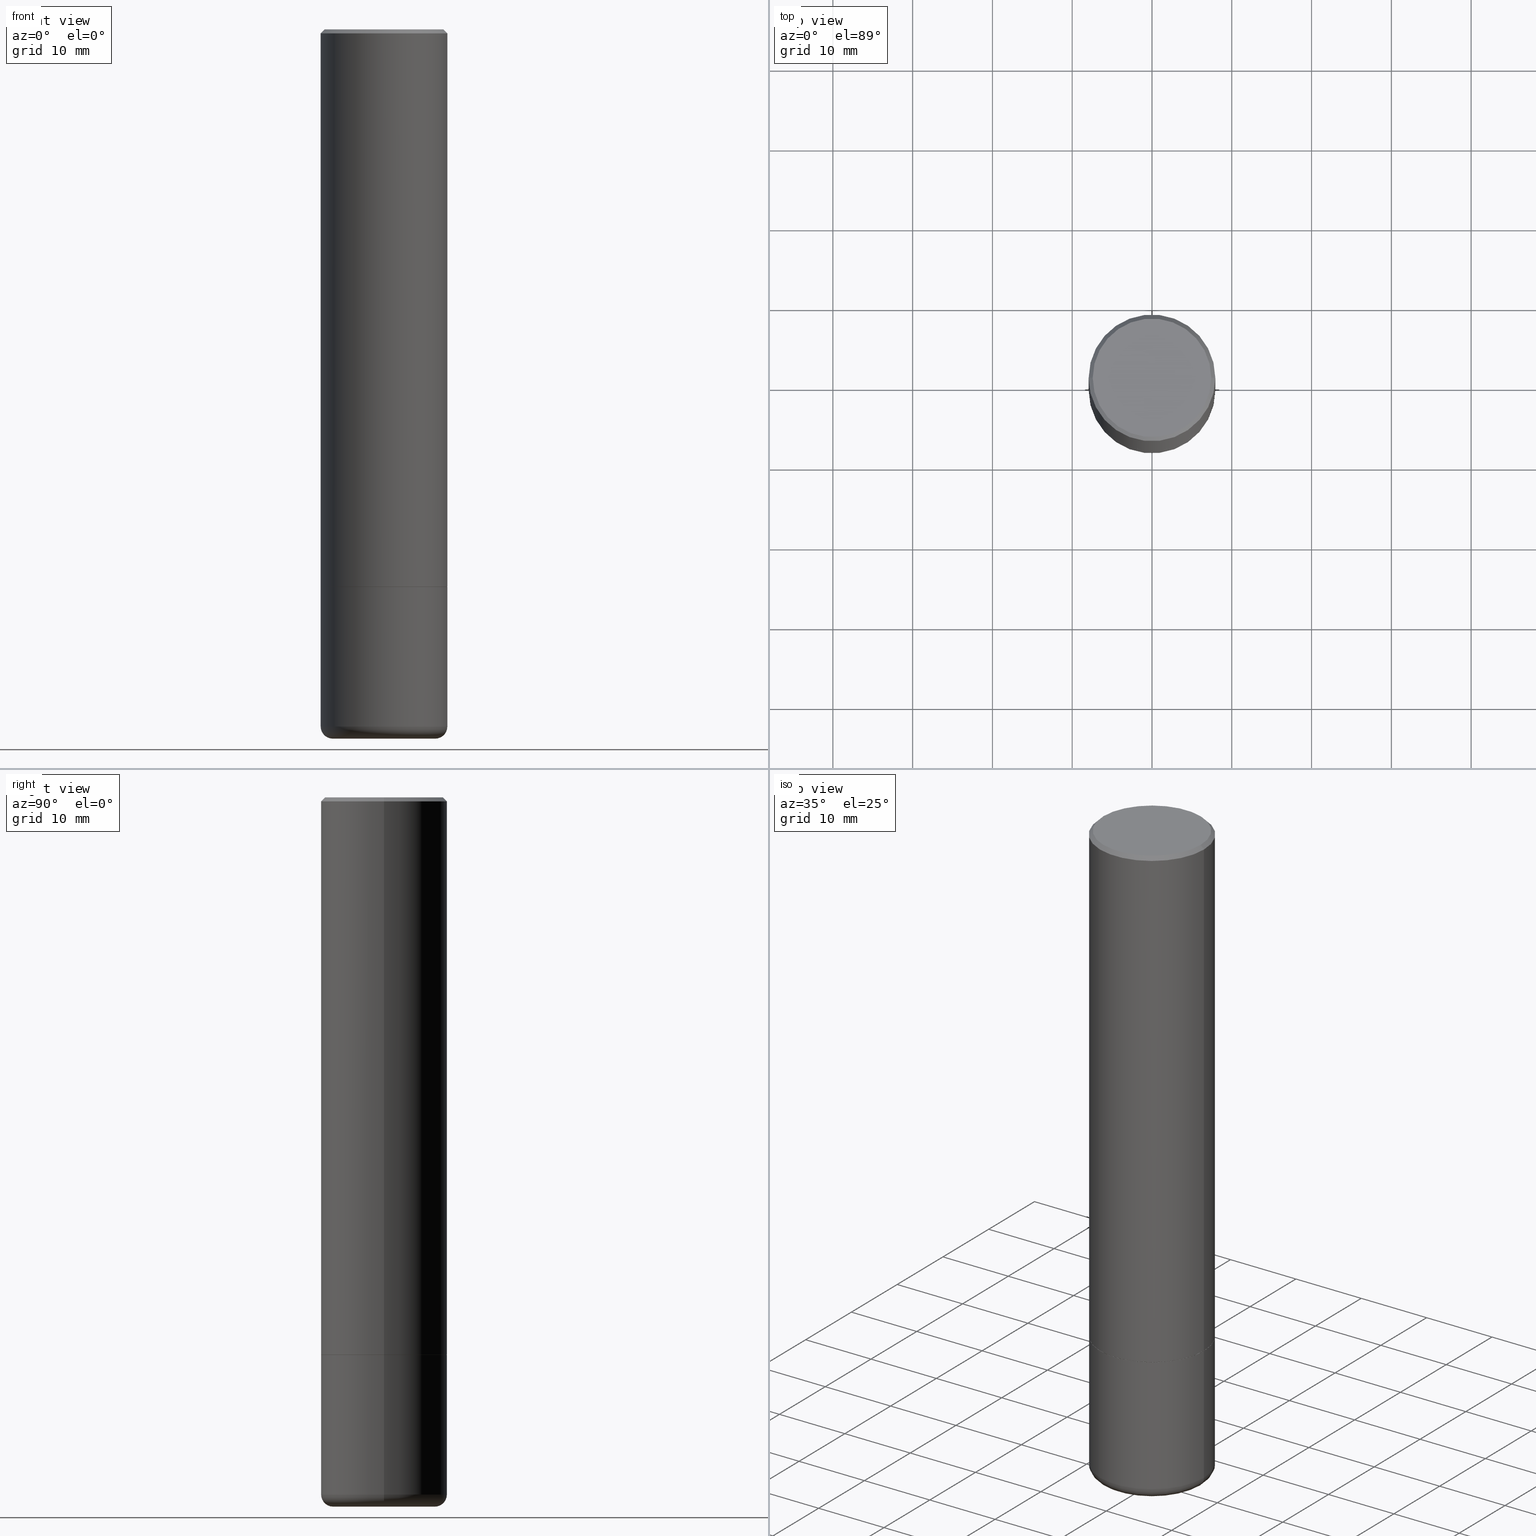
[diagram: canonical four-view strip — front | top / right | iso, engineering-drawing reading convention]
A machine part, canonical four-view strip (front | top / right | iso — engineering-drawing reading convention). The complete STEP part file that produces these views, byte-faithful:
ISO-10303-21;
HEADER;
FILE_DESCRIPTION (( 'STEP AP203' ),
    '1' );
FILE_NAME ('35623.STEP',
    '2022-11-02T20:29:45',
    ( '' ),
    ( '' ),
    'SwSTEP 2.0',
    'SolidWorks 2022',
    '' );
FILE_SCHEMA (( 'CONFIG_CONTROL_DESIGN' ));
ENDSEC;

DATA;
#1 = ORIENTED_EDGE ( 'NONE', *, *, #106, .T. ) ;
#2 = DIRECTION ( 'NONE',  ( -2.445468806185136597E-29, 3.491481338843145583E-15, 1.000000000000000000 ) ) ;
#3 = PERSON_AND_ORGANIZATION ( #435, #328 ) ;
#4 = CARTESIAN_POINT ( 'NONE',  ( 2.182175836777021850E-15, 0.3124999999999898415, -2.750000000000000888 ) ) ;
#5 = CIRCLE ( 'NONE', #326, 0.06000000000000021289 ) ;
#6 = EDGE_LOOP ( 'NONE', ( #268, #89, #362, #271 ) ) ;
#7 = SECURITY_CLASSIFICATION ( '', '', #199 ) ;
#8 = CARTESIAN_POINT ( 'NONE',  ( -1.043851414335219820E-46, 1.490343170380447200E-32, 4.268512490100411279E-18 ) ) ;
#9 = DIRECTION ( 'NONE',  ( 2.445468806185136597E-29, -3.491481338843145583E-15, -1.000000000000000000 ) ) ;
#10 = VERTEX_POINT ( 'NONE', #393 ) ;
#11 = DIRECTION ( 'NONE',  ( 2.438088387897960049E-29, -3.491481338843145188E-15, -1.000000000000000000 ) ) ;
#12 = CARTESIAN_POINT ( 'NONE',  ( 0.000000000000000000, 0.000000000000000000, 0.000000000000000000 ) ) ;
#13 = ORIENTED_EDGE ( 'NONE', *, *, #333, .T. ) ;
#14 = DIRECTION ( 'NONE',  ( 1.000000000000000000, -6.982962677686275388E-15, 0.000000000000000000 ) ) ;
#15 = LINE ( 'NONE', #461, #168 ) ;
#16 = SHAPE_DEFINITION_REPRESENTATION ( #80, #308 ) ;
#17 = DIRECTION ( 'NONE',  ( 1.000000000000000000, -6.982962677686266711E-15, 4.876176775795936353E-29 ) ) ;
#18 = AXIS2_PLACEMENT_3D ( 'NONE', #460, #11, #412 ) ;
#19 = CARTESIAN_POINT ( 'NONE',  ( 6.725039217009124520E-29, -9.601573681818649859E-15, -2.750000000000000000 ) ) ;
#20 = EDGE_CURVE ( 'NONE', #246, #224, #390, .T. ) ;
#21 = ORIENTED_EDGE ( 'NONE', *, *, #137, .F. ) ;
#22 = ADVANCED_FACE ( 'NONE', ( #476 ), #97, .F. ) ;
#23 = AXIS2_PLACEMENT_3D ( 'NONE', #78, #9, #203 ) ;
#24 = DIRECTION ( 'NONE',  ( -2.445468806185136597E-29, 3.491481338843145583E-15, 1.000000000000000000 ) ) ;
#25 = CARTESIAN_POINT ( 'NONE',  ( 8.412418280234396057E-29, -1.201070378231507189E-14, -3.440002284616148653 ) ) ;
#26 = DIRECTION ( 'NONE',  ( -0.9993908270190957621, 6.856857904024554104E-15, -0.03489949670250174635 ) ) ;
#27 = CLOSED_SHELL ( 'NONE', ( #351, #315, #487, #318, #59, #22, #55, #181, #96 ) ) ;
#28 = AXIS2_PLACEMENT_3D ( 'NONE', #8, #117, #342 ) ;
#29 = APPROVAL_STATUS ( 'not_yet_approved' ) ;
#30 = CARTESIAN_POINT ( 'NONE',  ( 0.3124999999999994449, -1.178374951859560505E-14, -2.750000000000000000 ) ) ;
#31 = EDGE_CURVE ( 'NONE', #238, #51, #263, .T. ) ;
#32 = DIRECTION ( 'NONE',  ( 1.000000000000000000, -6.982962677686264344E-15, 0.000000000000000000 ) ) ;
#33 = CARTESIAN_POINT ( 'NONE',  ( 0.3125000000000000000, -1.419287961909203023E-14, -3.440002284616148653 ) ) ;
#34 = AXIS2_PLACEMENT_3D ( 'NONE', #448, #324, #218 ) ;
#35 = ORIENTED_EDGE ( 'NONE', *, *, #343, .F. ) ;
#36 = DIRECTION ( 'NONE',  ( 1.000000000000000000, -6.982962677686265922E-15, 0.000000000000000000 ) ) ;
#37 = ORIENTED_EDGE ( 'NONE', *, *, #353, .T. ) ;
#38 = DIRECTION ( 'NONE',  ( -2.445468806185136877E-29, 3.491481338843145188E-15, 1.000000000000000000 ) ) ;
#39 = DIRECTION ( 'NONE',  ( -2.445468806185136597E-29, 3.491481338843145583E-15, 1.000000000000000000 ) ) ;
#40 = ORIENTED_EDGE ( 'NONE', *, *, #216, .T. ) ;
#41 = CARTESIAN_POINT ( 'NONE',  ( -0.3124999999999994449, -2.613509864378025150E-15, -2.749000000000000554 ) ) ;
#42 = CARTESIAN_POINT ( 'NONE',  ( -0.2525000000000002243, -1.021658337452081772E-14, -3.440002284616148653 ) ) ;
#43 = CIRCLE ( 'NONE', #369, 0.3124999999999994449 ) ;
#44 = ORIENTED_EDGE ( 'NONE', *, *, #139, .F. ) ;
#45 = PERSON_AND_ORGANIZATION ( #435, #328 ) ;
#46 = LOCAL_TIME ( 16, 29, 45.00000000000000000, #253 ) ;
#47 = FACE_OUTER_BOUND ( 'NONE', #116, .T. ) ;
#48 = PLANE ( 'NONE',  #62 ) ;
#49 = FACE_OUTER_BOUND ( 'NONE', #276, .T. ) ;
#50 = ADVANCED_FACE ( 'NONE', ( #458 ), #404, .T. ) ;
#51 = VERTEX_POINT ( 'NONE', #197 ) ;
#52 = CALENDAR_DATE ( 2022, 2, 11 ) ;
#53 = ORIENTED_EDGE ( 'NONE', *, *, #433, .F. ) ;
#54 = AXIS2_PLACEMENT_3D ( 'NONE', #101, #490, #290 ) ;
#55 = ADVANCED_FACE ( 'NONE', ( #344 ), #227, .T. ) ;
#56 = DIRECTION ( 'NONE',  ( 1.000000000000000000, -6.982962677686269077E-15, 0.000000000000000000 ) ) ;
#57 = UNCERTAINTY_MEASURE_WITH_UNIT (LENGTH_MEASURE( 1.000000000000000082E-05 ), #167, 'distance_accuracy_value', 'NONE');
#58 = APPLICATION_PROTOCOL_DEFINITION ( 'international standard', 'config_control_design', 1994, #121 ) ;
#59 = ADVANCED_FACE ( 'NONE', ( #49 ), #286, .F. ) ;
#60 = CARTESIAN_POINT ( 'NONE',  ( 6.725039217009124520E-29, -9.601573681818649859E-15, -2.750000000000000000 ) ) ;
#61 = DIMENSIONAL_EXPONENTS ( 1.000000000000000000, 0.000000000000000000, 0.000000000000000000, 0.000000000000000000, 0.000000000000000000, 0.000000000000000000, 0.000000000000000000 ) ;
#62 = AXIS2_PLACEMENT_3D ( 'NONE', #417, #222, #148 ) ;
#63 = MECHANICAL_CONTEXT ( 'NONE', #121, 'mechanical' ) ;
#64 = CARTESIAN_POINT ( 'NONE',  ( 4.890937612370311694E-31, -6.982962677686347076E-17, -0.02000000000000015654 ) ) ;
#65 = PERSON_AND_ORGANIZATION ( #435, #328 ) ;
#66 = CARTESIAN_POINT ( 'NONE',  ( 0.3124999999999997224, -2.182175836776956375E-15, 1.523805242436228674E-29 ) ) ;
#67 = EDGE_CURVE ( 'NONE', #104, #449, #5, .T. ) ;
#68 = AXIS2_PLACEMENT_3D ( 'NONE', #4, #334, #91 ) ;
#69 = DIRECTION ( 'NONE',  ( 1.000000000000000000, -6.982962677686269077E-15, 0.000000000000000000 ) ) ;
#70 = DIRECTION ( 'NONE',  ( -2.445468806185136597E-29, 3.491481338843145583E-15, 1.000000000000000000 ) ) ;
#71 = PERSON_AND_ORGANIZATION_ROLE ( 'creator' ) ;
#72 = VERTEX_POINT ( 'NONE', #201 ) ;
#73 = DIRECTION ( 'NONE',  ( -2.445468806185136597E-29, 3.491481338843145583E-15, 1.000000000000000000 ) ) ;
#74 = AXIS2_PLACEMENT_3D ( 'NONE', #77, #370, #372 ) ;
#75 = LOCAL_TIME ( 16, 29, 45.00000000000000000, #202 ) ;
#76 = VERTEX_POINT ( 'NONE', #339 ) ;
#77 = CARTESIAN_POINT ( 'NONE',  ( 8.412418280234396057E-29, -1.201070378231507189E-14, -3.440002284616148653 ) ) ;
#78 = CARTESIAN_POINT ( 'NONE',  ( 8.558429490010384641E-29, -1.221916909289494309E-14, -3.499709122587949750 ) ) ;
#79 = APPLICATION_CONTEXT ( 'configuration controlled 3d designs of mechanical parts and assemblies' ) ;
#80 = PRODUCT_DEFINITION_SHAPE ( 'NONE', 'NONE',  #340 ) ;
#81 = EDGE_LOOP ( 'NONE', ( #419, #311, #462, #205 ) ) ;
#82 = CARTESIAN_POINT ( 'NONE',  ( -0.3114999999999994440, -7.382934605577720906E-15, -2.750000000000000000 ) ) ;
#83 = DIRECTION ( 'NONE',  ( -2.445468806185136597E-29, 3.491481338843145583E-15, 1.000000000000000000 ) ) ;
#84 = ORIENTED_EDGE ( 'NONE', *, *, #414, .F. ) ;
#85 = DATE_AND_TIME ( #383, #75 ) ;
#86 = PLANE ( 'NONE',  #18 ) ;
#87 = CC_DESIGN_PERSON_AND_ORGANIZATION_ASSIGNMENT ( #439, #100, ( #340 ) ) ;
#88 = DIRECTION ( 'NONE',  ( -2.445468806185136597E-29, 3.491481338843145583E-15, 1.000000000000000000 ) ) ;
#89 = ORIENTED_EDGE ( 'NONE', *, *, #233, .T. ) ;
#90 = DIRECTION ( 'NONE',  ( -6.982962677686266711E-15, -1.000000000000000000, 3.491481338843145583E-15 ) ) ;
#91 = DIRECTION ( 'NONE',  ( -1.000000000000000000, 6.982962677686265922E-15, -4.876176775795935793E-29 ) ) ;
#92 = ORIENTED_EDGE ( 'NONE', *, *, #31, .F. ) ;
#93 = EDGE_CURVE ( 'NONE', #289, #456, #43, .T. ) ;
#94 = ORIENTED_EDGE ( 'NONE', *, *, #216, .F. ) ;
#95 = AXIS2_PLACEMENT_3D ( 'NONE', #60, #209, #170 ) ;
#96 = ADVANCED_FACE ( 'NONE', ( #149 ), #452, .F. ) ;
#97 = PLANE ( 'NONE',  #68 ) ;
#98 = APPROVAL_ROLE ( '' ) ;
#99 = CARTESIAN_POINT ( 'NONE',  ( -0.3124999999999993339, 2.220446049250308348E-15, -1.537167215704654869E-29 ) ) ;
#100 = PERSON_AND_ORGANIZATION_ROLE ( 'creator' ) ;
#101 = CARTESIAN_POINT ( 'NONE',  ( 8.412418280234396057E-29, -1.201070378231507189E-14, -3.440002284616148653 ) ) ;
#102 = CIRCLE ( 'NONE', #355, 0.3124999999999994449 ) ;
#103 = CONICAL_SURFACE ( 'NONE', #437, 0.3114999999999994440, 0.7853981633978239785 ) ;
#104 = VERTEX_POINT ( 'NONE', #426 ) ;
#105 = CARTESIAN_POINT ( 'NONE',  ( 0.3124999999999991673, -2.213735251080461389E-15, -0.02000000000000015654 ) ) ;
#106 = EDGE_CURVE ( 'NONE', #304, #406, #296, .T. ) ;
#107 = ORIENTED_EDGE ( 'NONE', *, *, #279, .F. ) ;
#108 = LINE ( 'NONE', #66, #319 ) ;
#109 = ORIENTED_EDGE ( 'NONE', *, *, #279, .T. ) ;
#110 = DIRECTION ( 'NONE',  ( 2.445468806185136597E-29, -3.491481338843145583E-15, -1.000000000000000000 ) ) ;
#111 = CLOSED_SHELL ( 'NONE', ( #146, #50, #291, #242, #173, #345, #408, #302 ) ) ;
#112 = VECTOR ( 'NONE', #114, 39.37007874015748854 ) ;
#113 = EDGE_LOOP ( 'NONE', ( #107, #92, #371, #141 ) ) ;
#114 = DIRECTION ( 'NONE',  ( 0.7071067811868130271, -2.468850131085038979E-15, 0.7071067811862817853 ) ) ;
#115 = DIRECTION ( 'NONE',  ( 1.000000000000000000, -6.982962677686265922E-15, 0.000000000000000000 ) ) ;
#116 = EDGE_LOOP ( 'NONE', ( #483, #37 ) ) ;
#117 = DIRECTION ( 'NONE',  ( -2.445468806185136597E-29, 3.491481338843145583E-15, 1.000000000000000000 ) ) ;
#118 = DIRECTION ( 'NONE',  ( -1.000000000000000000, 7.105427357600997914E-15, 0.000000000000000000 ) ) ;
#119 = VERTEX_POINT ( 'NONE', #159 ) ;
#120 = CARTESIAN_POINT ( 'NONE',  ( 6.725039217009124520E-29, -9.601573681818649859E-15, -2.750000000000000000 ) ) ;
#121 = APPLICATION_CONTEXT ( 'configuration controlled 3d designs of mechanical parts and assemblies' ) ;
#122 = CARTESIAN_POINT ( 'NONE',  ( 6.725039217009124520E-29, -9.601573681818649859E-15, -2.750000000000000000 ) ) ;
#123 = AXIS2_PLACEMENT_3D ( 'NONE', #64, #133, #220 ) ;
#124 = ORIENTED_EDGE ( 'NONE', *, *, #237, .F. ) ;
#125 = VECTOR ( 'NONE', #375, 39.37007874015748854 ) ;
#126 = DIRECTION ( 'NONE',  ( -1.000000000000000000, 6.982962677686267499E-15, 0.000000000000000000 ) ) ;
#127 =( NAMED_UNIT ( * ) PLANE_ANGLE_UNIT ( ) SI_UNIT ( $, .RADIAN. ) );
#128 = EDGE_LOOP ( 'NONE', ( #40, #415, #329, #206 ) ) ;
#129 = VECTOR ( 'NONE', #287, 39.37007874015748143 ) ;
#130 = APPROVAL_STATUS ( 'not_yet_approved' ) ;
#131 = ORIENTED_EDGE ( 'NONE', *, *, #357, .T. ) ;
#132 = CALENDAR_DATE ( 2022, 2, 11 ) ;
#133 = DIRECTION ( 'NONE',  ( -2.445468806185136597E-29, 3.491481338843145583E-15, 1.000000000000000000 ) ) ;
#134 = AXIS2_PLACEMENT_3D ( 'NONE', #285, #215, #401 ) ;
#135 = PERSON_AND_ORGANIZATION ( #435, #328 ) ;
#136 = CARTESIAN_POINT ( 'NONE',  ( 0.2186451578700980558, -1.371918376068519109E-14, -3.499709122587949750 ) ) ;
#137 = EDGE_CURVE ( 'NONE', #238, #331, #427, .T. ) ;
#138 = CARTESIAN_POINT ( 'NONE',  ( -0.3124999999999997224, 2.220446049250311109E-15, -1.537167215704656831E-29 ) ) ;
#139 = EDGE_CURVE ( 'NONE', #456, #289, #102, .T. ) ;
#140 = CONICAL_SURFACE ( 'NONE', #264, 0.2519764078700980625, 1.562069680534954541 ) ;
#141 = ORIENTED_EDGE ( 'NONE', *, *, #237, .T. ) ;
#142 = CC_DESIGN_PERSON_AND_ORGANIZATION_ASSIGNMENT ( #397, #360, ( #445 ) ) ;
#143 = EDGE_LOOP ( 'NONE', ( #84, #1, #260, #335 ) ) ;
#144 = CARTESIAN_POINT ( 'NONE',  ( 8.558429490010384641E-29, -1.221916909289494309E-14, -3.499709122587949750 ) ) ;
#145 = EDGE_CURVE ( 'NONE', #76, #119, #15, .T. ) ;
#146 = ADVANCED_FACE ( 'NONE', ( #455 ), #310, .T. ) ;
#147 = ORIENTED_EDGE ( 'NONE', *, *, #106, .F. ) ;
#148 = DIRECTION ( 'NONE',  ( 1.000000000000000000, -6.982962677686265922E-15, 4.876176775795935793E-29 ) ) ;
#149 = FACE_OUTER_BOUND ( 'NONE', #259, .T. ) ;
#150 = EDGE_CURVE ( 'NONE', #76, #314, #235, .T. ) ;
#151 = VECTOR ( 'NONE', #327, 39.37007874015748143 ) ;
#152 = APPROVAL_PERSON_ORGANIZATION ( #135, #389, #98 ) ;
#153 = CC_DESIGN_APPROVAL ( #367, ( #340 ) ) ;
#154 = ORIENTED_EDGE ( 'NONE', *, *, #414, .T. ) ;
#155 = CARTESIAN_POINT ( 'NONE',  ( 8.412418280234396057E-29, -1.201070378231507189E-14, -3.440002284616148653 ) ) ;
#156 = DIRECTION ( 'NONE',  ( 1.000000000000000000, -6.982962677686265922E-15, 0.000000000000000000 ) ) ;
#157 = ORIENTED_EDGE ( 'NONE', *, *, #150, .F. ) ;
#158 = FACE_OUTER_BOUND ( 'NONE', #143, .T. ) ;
#159 = CARTESIAN_POINT ( 'NONE',  ( 0.2519764078700980625, -1.397972653776535220E-14, -3.499999999999999112 ) ) ;
#160 = CARTESIAN_POINT ( 'NONE',  ( 6.725039217009124520E-29, -9.601573681818649859E-15, -2.750000000000000000 ) ) ;
#161 = DIRECTION ( 'NONE',  ( -2.445468806185136597E-29, 3.491481338843145583E-15, 1.000000000000000000 ) ) ;
#162 = AXIS2_PLACEMENT_3D ( 'NONE', #267, #39, #312 ) ;
#163 = AXIS2_PLACEMENT_3D ( 'NONE', #269, #73, #191 ) ;
#164 = PRODUCT_RELATED_PRODUCT_CATEGORY ( 'detail', '', ( #442 ) ) ;
#165 = DIRECTION ( 'NONE',  ( 7.105427357601001859E-15, 1.000000000000000000, -3.491481338843145583E-15 ) ) ;
#166 = LENGTH_MEASURE_WITH_UNIT ( LENGTH_MEASURE( 0.02539999999999999897 ), #207 );
#167 =( CONVERSION_BASED_UNIT ( 'INCH', #166 ) LENGTH_UNIT ( ) NAMED_UNIT ( #61 ) );
#168 = VECTOR ( 'NONE', #273, 39.37007874015748854 ) ;
#169 = AXIS2_PLACEMENT_3D ( 'NONE', #330, #2, #463 ) ;
#170 = DIRECTION ( 'NONE',  ( 1.000000000000000000, -6.982962677686269077E-15, 0.000000000000000000 ) ) ;
#171 = APPROVAL_ROLE ( '' ) ;
#172 = DIRECTION ( 'NONE',  ( -2.445468806185136597E-29, 3.491481338843145583E-15, 1.000000000000000000 ) ) ;
#173 = ADVANCED_FACE ( 'NONE', ( #303 ), #373, .T. ) ;
#174 = CIRCLE ( 'NONE', #123, 0.3124999999999991673 ) ;
#175 = LOCAL_TIME ( 16, 29, 45.00000000000000000, #484 ) ;
#176 = COORDINATED_UNIVERSAL_TIME_OFFSET ( 5, 0, .BEHIND. ) ;
#177 = LINE ( 'NONE', #136, #248 ) ;
#178 = EDGE_CURVE ( 'NONE', #72, #314, #477, .T. ) ;
#179 = CALENDAR_DATE ( 2022, 2, 11 ) ;
#180 = CARTESIAN_POINT ( 'NONE',  ( -0.2186451578700980558, -1.069237811583122742E-14, -3.499709122587949750 ) ) ;
#181 = ADVANCED_FACE ( 'NONE', ( #284 ), #464, .T. ) ;
#182 = ORIENTED_EDGE ( 'NONE', *, *, #425, .T. ) ;
#183 = VECTOR ( 'NONE', #470, 39.37007874015748143 ) ;
#184 = VECTOR ( 'NONE', #492, 39.37007874015748854 ) ;
#185 = ORIENTED_EDGE ( 'NONE', *, *, #178, .F. ) ;
#186 = LINE ( 'NONE', #295, #184 ) ;
#187 = EDGE_LOOP ( 'NONE', ( #382, #300, #131, #325 ) ) ;
#188 = CARTESIAN_POINT ( 'NONE',  ( 0.3114999999999994440, -1.177676655591791904E-14, -2.750000000000000000 ) ) ;
#189 = CARTESIAN_POINT ( 'NONE',  ( 8.559140821647976968E-29, -1.222018468595100619E-14, -3.499999999999999112 ) ) ;
#190 = EDGE_LOOP ( 'NONE', ( #185, #292, #94 ) ) ;
#191 = DIRECTION ( 'NONE',  ( 1.000000000000000000, -6.982962677686269077E-15, 0.000000000000000000 ) ) ;
#192 = DIRECTION ( 'NONE',  ( -2.445468806185136597E-29, 3.491481338843145583E-15, 1.000000000000000000 ) ) ;
#193 = AXIS2_PLACEMENT_3D ( 'NONE', #255, #366, #321 ) ;
#194 = ORIENTED_EDGE ( 'NONE', *, *, #208, .T. ) ;
#195 = APPROVAL_ROLE ( '' ) ;
#196 = CARTESIAN_POINT ( 'NONE',  ( -0.3124999999999991673, 2.112346210000089132E-15, -0.02000000000000015654 ) ) ;
#197 = CARTESIAN_POINT ( 'NONE',  ( 0.2924999999999989830, -2.110215457714314014E-15, 4.268512490114932791E-18 ) ) ;
#198 = CARTESIAN_POINT ( 'NONE',  ( 0.2525000000000002243, -1.377390185843085360E-14, -3.440002284616148653 ) ) ;
#199 = SECURITY_CLASSIFICATION_LEVEL ( 'unclassified' ) ;
#200 = EDGE_CURVE ( 'NONE', #449, #231, #423, .T. ) ;
#201 = CARTESIAN_POINT ( 'NONE',  ( 8.538815438383307380E-29, -1.219386011701525058E-14, -3.492073865429480950 ) ) ;
#202 = COORDINATED_UNIVERSAL_TIME_OFFSET ( 5, 0, .BEHIND. ) ;
#203 = DIRECTION ( 'NONE',  ( -1.000000000000000000, 6.982962677686264344E-15, 0.000000000000000000 ) ) ;
#204 = CONICAL_SURFACE ( 'NONE', #478, 0.2186451578700980558, 1.535889741755009252 ) ;
#205 = ORIENTED_EDGE ( 'NONE', *, *, #358, .F. ) ;
#206 = ORIENTED_EDGE ( 'NONE', *, *, #425, .F. ) ;
#207 =( LENGTH_UNIT ( ) NAMED_UNIT ( * ) SI_UNIT ( $, .METRE. ) );
#208 = EDGE_CURVE ( 'NONE', #10, #331, #174, .T. ) ;
#209 = DIRECTION ( 'NONE',  ( -2.445468806185136597E-29, 3.491481338843145583E-15, 1.000000000000000000 ) ) ;
#210 = AXIS2_PLACEMENT_3D ( 'NONE', #25, #70, #69 ) ;
#211 = LINE ( 'NONE', #99, #151 ) ;
#212 = ORIENTED_EDGE ( 'NONE', *, *, #20, .F. ) ;
#213 = APPROVAL_DATE_TIME ( #280, #367 ) ;
#214 = DIRECTION ( 'NONE',  ( -2.445468806185136877E-29, 3.491481338843145188E-15, 1.000000000000000000 ) ) ;
#215 = DIRECTION ( 'NONE',  ( 0.000000000000000000, 0.000000000000000000, 1.000000000000000000 ) ) ;
#216 = EDGE_CURVE ( 'NONE', #314, #76, #350, .T. ) ;
#217 = VECTOR ( 'NONE', #258, 39.37007874015748143 ) ;
#218 = DIRECTION ( 'NONE',  ( -1.000000000000000000, 6.982962677686267499E-15, 0.000000000000000000 ) ) ;
#219 = APPROVAL_PERSON_ORGANIZATION ( #65, #367, #171 ) ;
#220 = DIRECTION ( 'NONE',  ( 1.000000000000000000, -6.982962677686266711E-15, 0.000000000000000000 ) ) ;
#221 = ORIENTED_EDGE ( 'NONE', *, *, #400, .T. ) ;
#222 = DIRECTION ( 'NONE',  ( -2.438088387897960049E-29, 3.491481338843145188E-15, 1.000000000000000000 ) ) ;
#223 = CIRCLE ( 'NONE', #436, 0.3124999999999991673 ) ;
#224 = VERTEX_POINT ( 'NONE', #403 ) ;
#225 = FACE_OUTER_BOUND ( 'NONE', #257, .T. ) ;
#226 = EDGE_CURVE ( 'NONE', #119, #104, #245, .T. ) ;
#227 = CYLINDRICAL_SURFACE ( 'NONE', #379, 0.3124999999999997224 ) ;
#228 = ORIENTED_EDGE ( 'NONE', *, *, #226, .T. ) ;
#229 = CARTESIAN_POINT ( 'NONE',  ( -0.2186451578700980558, -1.069237811583122742E-14, -3.499709122587949750 ) ) ;
#230 = CARTESIAN_POINT ( 'NONE',  ( -1.043851414335219820E-46, 1.490343170380447200E-32, 4.268512490100411279E-18 ) ) ;
#231 = VERTEX_POINT ( 'NONE', #33 ) ;
#232 = LINE ( 'NONE', #457, #411 ) ;
#233 = EDGE_CURVE ( 'NONE', #289, #331, #211, .T. ) ;
#234 = CARTESIAN_POINT ( 'NONE',  ( -0.3124999999999991673, 2.112346210000089132E-15, -0.02000000000000015654 ) ) ;
#235 = CIRCLE ( 'NONE', #162, 0.2186451578700980558 ) ;
#236 = CC_DESIGN_APPROVAL ( #389, ( #445 ) ) ;
#237 = EDGE_CURVE ( 'NONE', #331, #10, #223, .T. ) ;
#238 = VERTEX_POINT ( 'NONE', #252 ) ;
#239 = DIRECTION ( 'NONE',  ( -2.445468806185136597E-29, 3.491481338843145583E-15, 1.000000000000000000 ) ) ;
#240 = DIRECTION ( 'NONE',  ( -2.445468806185136597E-29, 3.491481338843145583E-15, 1.000000000000000000 ) ) ;
#241 = DATE_AND_TIME ( #52, #432 ) ;
#242 = ADVANCED_FACE ( 'NONE', ( #365 ), #431, .T. ) ;
#243 = EDGE_CURVE ( 'NONE', #231, #246, #108, .T. ) ;
#244 = ORIENTED_EDGE ( 'NONE', *, *, #150, .T. ) ;
#245 = CIRCLE ( 'NONE', #193, 0.2519764078700980625 ) ;
#246 = VERTEX_POINT ( 'NONE', #30 ) ;
#247 = PERSON_AND_ORGANIZATION ( #435, #328 ) ;
#248 = VECTOR ( 'NONE', #482, 39.37007874015748854 ) ;
#249 = APPROVAL ( #387, 'UNSPECIFIED' ) ;
#250 = DIRECTION ( 'NONE',  ( 1.000000000000000000, -6.982962677686266711E-15, 0.000000000000000000 ) ) ;
#251 = EDGE_CURVE ( 'NONE', #72, #76, #177, .T. ) ;
#252 = CARTESIAN_POINT ( 'NONE',  ( -0.2924999999999989830, 2.077431396611657483E-15, 4.268512490086005323E-18 ) ) ;
#253 = COORDINATED_UNIVERSAL_TIME_OFFSET ( 5, 0, .BEHIND. ) ;
#254 = AXIS2_PLACEMENT_3D ( 'NONE', #467, #192, #388 ) ;
#255 = CARTESIAN_POINT ( 'NONE',  ( 8.559140821647976968E-29, -1.222018468595100619E-14, -3.499999999999999112 ) ) ;
#256 = CARTESIAN_POINT ( 'NONE',  ( 0.000000000000000000, 0.000000000000000000, 0.000000000000000000 ) ) ;
#257 = EDGE_LOOP ( 'NONE', ( #489, #109, #194, #21 ) ) ;
#258 = DIRECTION ( 'NONE',  ( 0.7071067811865481278, -7.319954787623257623E-15, -0.7071067811865469066 ) ) ;
#259 = EDGE_LOOP ( 'NONE', ( #277, #244, #182, #459 ) ) ;
#260 = ORIENTED_EDGE ( 'NONE', *, *, #343, .T. ) ;
#261 = CARTESIAN_POINT ( 'NONE',  ( -0.2519764078700980625, -1.046064283413666017E-14, -3.499999999999999112 ) ) ;
#262 = EDGE_CURVE ( 'NONE', #449, #224, #485, .T. ) ;
#263 = CIRCLE ( 'NONE', #395, 0.2924999999999989830 ) ;
#264 = AXIS2_PLACEMENT_3D ( 'NONE', #332, #110, #272 ) ;
#265 = ORIENTED_EDGE ( 'NONE', *, *, #357, .F. ) ;
#266 = DIRECTION ( 'NONE',  ( 1.000000000000000000, -6.982962677686265922E-15, 0.000000000000000000 ) ) ;
#267 = CARTESIAN_POINT ( 'NONE',  ( 8.558429490010384641E-29, -1.221916909289494309E-14, -3.499709122587949750 ) ) ;
#268 = ORIENTED_EDGE ( 'NONE', *, *, #139, .T. ) ;
#269 = CARTESIAN_POINT ( 'NONE',  ( 6.725039217009124520E-29, -9.601573681818649859E-15, -2.750000000000000000 ) ) ;
#270 = DIRECTION ( 'NONE',  ( 1.000000000000000000, -6.982962677686269077E-15, 0.000000000000000000 ) ) ;
#271 = ORIENTED_EDGE ( 'NONE', *, *, #333, .F. ) ;
#272 = DIRECTION ( 'NONE',  ( -1.000000000000000000, 6.982962677686264344E-15, 0.000000000000000000 ) ) ;
#273 = DIRECTION ( 'NONE',  ( 0.9999619230641716427, -6.890705306874740920E-15, -0.008726535498344366315 ) ) ;
#274 = AXIS2_PLACEMENT_3D ( 'NONE', #189, #299, #421 ) ;
#275 = CIRCLE ( 'NONE', #28, 0.2924999999999989830 ) ;
#276 = EDGE_LOOP ( 'NONE', ( #480, #440, #157 ) ) ;
#277 = ORIENTED_EDGE ( 'NONE', *, *, #145, .F. ) ;
#278 = CC_DESIGN_PERSON_AND_ORGANIZATION_ASSIGNMENT ( #479, #363, ( #442 ) ) ;
#279 = EDGE_CURVE ( 'NONE', #51, #10, #446, .T. ) ;
#280 = DATE_AND_TIME ( #179, #46 ) ;
#281 = CC_DESIGN_PERSON_AND_ORGANIZATION_ASSIGNMENT ( #3, #465, ( #7 ) ) ;
#282 = AXIS2_PLACEMENT_3D ( 'NONE', #378, #384, #126 ) ;
#283 = CIRCLE ( 'NONE', #424, 0.3114999999999994440 ) ;
#284 = FACE_OUTER_BOUND ( 'NONE', #187, .T. ) ;
#285 = CARTESIAN_POINT ( 'NONE',  ( 0.000000000000000000, 0.000000000000000000, 0.000000000000000000 ) ) ;
#286 = CONICAL_SURFACE ( 'NONE', #23, 0.2186451578700980558, 1.535889741755009252 ) ;
#287 = DIRECTION ( 'NONE',  ( -2.445468806185136877E-29, 3.491481338843145188E-15, 1.000000000000000000 ) ) ;
#288 = DESIGN_CONTEXT ( 'detailed design', #79, 'design' ) ;
#289 = VERTEX_POINT ( 'NONE', #41 ) ;
#290 = DIRECTION ( 'NONE',  ( 1.000000000000000000, -6.982962677686265922E-15, 4.883557194083112340E-29 ) ) ;
#291 = ADVANCED_FACE ( 'NONE', ( #225 ), #471, .T. ) ;
#292 = ORIENTED_EDGE ( 'NONE', *, *, #251, .T. ) ;
#293 = DIRECTION ( 'NONE',  ( -2.445468806185136597E-29, 3.491481338843145583E-15, 1.000000000000000000 ) ) ;
#294 = EDGE_LOOP ( 'NONE', ( #322, #429, #212, #386 ) ) ;
#295 = CARTESIAN_POINT ( 'NONE',  ( -0.3114999999999994440, -7.388233059925943309E-15, -2.750000000000000000 ) ) ;
#296 = CIRCLE ( 'NONE', #313, 0.3114999999999994440 ) ;
#297 = AXIS2_PLACEMENT_3D ( 'NONE', #256, #83, #317 ) ;
#298 = CIRCLE ( 'NONE', #169, 0.2519764078700980625 ) ;
#299 = DIRECTION ( 'NONE',  ( 2.445468806185136597E-29, -3.491481338843145583E-15, -1.000000000000000000 ) ) ;
#300 = ORIENTED_EDGE ( 'NONE', *, *, #409, .T. ) ;
#301 = FACE_OUTER_BOUND ( 'NONE', #451, .T. ) ;
#302 = ADVANCED_FACE ( 'NONE', ( #47 ), #86, .F. ) ;
#303 = FACE_OUTER_BOUND ( 'NONE', #377, .T. ) ;
#304 = VERTEX_POINT ( 'NONE', #82 ) ;
#305 = FACE_OUTER_BOUND ( 'NONE', #128, .T. ) ;
#306 = CARTESIAN_POINT ( 'NONE',  ( 6.722593748202942280E-29, -9.598082200479810007E-15, -2.749000000000000554 ) ) ;
#307 = CARTESIAN_POINT ( 'NONE',  ( 0.3114999999999994440, -1.177676655591791904E-14, -2.750000000000000000 ) ) ;
#308 = ADVANCED_BREP_SHAPE_REPRESENTATION ( '35623', ( #469, #475, #134 ), #413 ) ;
#309 = CARTESIAN_POINT ( 'NONE',  ( 6.722593748202942280E-29, -9.598082200479810007E-15, -2.749000000000000554 ) ) ;
#310 = CONICAL_SURFACE ( 'NONE', #402, 0.3114999999999994440, 0.7853981633978239785 ) ;
#311 = ORIENTED_EDGE ( 'NONE', *, *, #200, .T. ) ;
#312 = DIRECTION ( 'NONE',  ( 1.000000000000000000, -6.982962677686264344E-15, 0.000000000000000000 ) ) ;
#313 = AXIS2_PLACEMENT_3D ( 'NONE', #122, #88, #156 ) ;
#314 = VERTEX_POINT ( 'NONE', #229 ) ;
#315 = ADVANCED_FACE ( 'NONE', ( #301 ), #443, .T. ) ;
#316 = CC_DESIGN_PERSON_AND_ORGANIZATION_ASSIGNMENT ( #247, #71, ( #445 ) ) ;
#317 = DIRECTION ( 'NONE',  ( 1.000000000000000000, -6.982962677686266711E-15, 4.876176775795935793E-29 ) ) ;
#318 = ADVANCED_FACE ( 'NONE', ( #346 ), #204, .F. ) ;
#319 = VECTOR ( 'NONE', #214, 39.37007874015748143 ) ;
#320 = CC_DESIGN_SECURITY_CLASSIFICATION ( #7, ( #445 ) ) ;
#321 = DIRECTION ( 'NONE',  ( 1.000000000000000000, -6.982962677686264344E-15, 0.000000000000000000 ) ) ;
#322 = ORIENTED_EDGE ( 'NONE', *, *, #433, .T. ) ;
#323 = DATE_AND_TIME ( #132, #175 ) ;
#324 = DIRECTION ( 'NONE',  ( 2.445468806185136597E-29, -3.491481338843145583E-15, -1.000000000000000000 ) ) ;
#325 = ORIENTED_EDGE ( 'NONE', *, *, #200, .F. ) ;
#326 = AXIS2_PLACEMENT_3D ( 'NONE', #42, #165, #118 ) ;
#327 = DIRECTION ( 'NONE',  ( -2.445468806185136877E-29, 3.491481338843145188E-15, 1.000000000000000000 ) ) ;
#328 = ORGANIZATION ( 'UNSPECIFIED', 'UNSPECIFIED', '' ) ;
#329 = ORIENTED_EDGE ( 'NONE', *, *, #409, .F. ) ;
#330 = CARTESIAN_POINT ( 'NONE',  ( 8.559140821647976968E-29, -1.222018468595100619E-14, -3.499999999999999112 ) ) ;
#331 = VERTEX_POINT ( 'NONE', #196 ) ;
#332 = CARTESIAN_POINT ( 'NONE',  ( 8.559140821647976968E-29, -1.222018468595100619E-14, -3.499999999999999112 ) ) ;
#333 = EDGE_CURVE ( 'NONE', #456, #10, #232, .T. ) ;
#334 = DIRECTION ( 'NONE',  ( 2.438088387897960049E-29, -3.491481338843145188E-15, -1.000000000000000000 ) ) ;
#335 = ORIENTED_EDGE ( 'NONE', *, *, #93, .F. ) ;
#336 = DIRECTION ( 'NONE',  ( 2.445468806185136597E-29, -3.491481338843145583E-15, -1.000000000000000000 ) ) ;
#337 = AXIS2_PLACEMENT_3D ( 'NONE', #399, #438, #32 ) ;
#338 = APPROVAL_PERSON_ORGANIZATION ( #45, #249, #195 ) ;
#339 = CARTESIAN_POINT ( 'NONE',  ( 0.2186451578700980558, -1.371918376068519109E-14, -3.499709122587949750 ) ) ;
#340 = PRODUCT_DEFINITION ( 'UNKNOWN', '', #445, #288 ) ;
#341 = ORIENTED_EDGE ( 'NONE', *, *, #358, .T. ) ;
#342 = DIRECTION ( 'NONE',  ( 1.000000000000000000, -6.982962677686266711E-15, 4.876067333457706292E-29 ) ) ;
#343 = EDGE_CURVE ( 'NONE', #406, #456, #407, .T. ) ;
#344 = FACE_OUTER_BOUND ( 'NONE', #81, .T. ) ;
#345 = ADVANCED_FACE ( 'NONE', ( #158 ), #103, .T. ) ;
#346 = FACE_OUTER_BOUND ( 'NONE', #190, .T. ) ;
#347 = DIRECTION ( 'NONE',  ( -2.445468806185136597E-29, 3.491481338843145583E-15, 1.000000000000000000 ) ) ;
#348 = APPROVAL_DATE_TIME ( #85, #249 ) ;
#349 = DIRECTION ( 'NONE',  ( -2.445468806185136597E-29, 3.491481338843145583E-15, 1.000000000000000000 ) ) ;
#350 = CIRCLE ( 'NONE', #337, 0.2186451578700980558 ) ;
#351 = ADVANCED_FACE ( 'NONE', ( #305 ), #140, .F. ) ;
#352 = CARTESIAN_POINT ( 'NONE',  ( 0.3124999999999994449, -1.178025803725676520E-14, -2.749000000000000554 ) ) ;
#353 = EDGE_CURVE ( 'NONE', #51, #238, #275, .T. ) ;
#354 = CYLINDRICAL_SURFACE ( 'NONE', #472, 0.3124999999999997224 ) ;
#355 = AXIS2_PLACEMENT_3D ( 'NONE', #306, #347, #418 ) ;
#356 = FACE_OUTER_BOUND ( 'NONE', #294, .T. ) ;
#357 = EDGE_CURVE ( 'NONE', #119, #231, #380, .T. ) ;
#358 = EDGE_CURVE ( 'NONE', #224, #246, #454, .T. ) ;
#359 = CARTESIAN_POINT ( 'NONE',  ( 4.890937612370311694E-31, -6.982962677686347076E-17, -0.02000000000000015654 ) ) ;
#360 = PERSON_AND_ORGANIZATION_ROLE ( 'design_supplier' ) ;
#361 = DATE_TIME_ROLE ( 'creation_date' ) ;
#362 = ORIENTED_EDGE ( 'NONE', *, *, #208, .F. ) ;
#363 = PERSON_AND_ORGANIZATION_ROLE ( 'design_owner' ) ;
#364 = AXIS2_PLACEMENT_3D ( 'NONE', #155, #392, #56 ) ;
#365 = FACE_OUTER_BOUND ( 'NONE', #113, .T. ) ;
#366 = DIRECTION ( 'NONE',  ( -2.445468806185136597E-29, 3.491481338843145583E-15, 1.000000000000000000 ) ) ;
#367 = APPROVAL ( #130, 'UNSPECIFIED' ) ;
#368 = ORIENTED_EDGE ( 'NONE', *, *, #233, .F. ) ;
#369 = AXIS2_PLACEMENT_3D ( 'NONE', #309, #349, #270 ) ;
#370 = DIRECTION ( 'NONE',  ( -2.445468806185136597E-29, 3.491481338843145583E-15, 1.000000000000000000 ) ) ;
#371 = ORIENTED_EDGE ( 'NONE', *, *, #137, .T. ) ;
#372 = DIRECTION ( 'NONE',  ( 1.000000000000000000, -6.982962677686265922E-15, 4.883557194083112340E-29 ) ) ;
#373 = CYLINDRICAL_SURFACE ( 'NONE', #297, 0.3124999999999993339 ) ;
#374 = ORIENTED_EDGE ( 'NONE', *, *, #400, .F. ) ;
#375 = DIRECTION ( 'NONE',  ( -0.9999619230641716427, 6.952228252019274165E-15, -0.008726535498344366315 ) ) ;
#376 = DIRECTION ( 'NONE',  ( -2.445468806185136597E-29, 3.491481338843145583E-15, 1.000000000000000000 ) ) ;
#377 = EDGE_LOOP ( 'NONE', ( #368, #410, #13, #124 ) ) ;
#378 = CARTESIAN_POINT ( 'NONE',  ( 4.890937612370311694E-31, -6.982962677686347076E-17, -0.02000000000000015654 ) ) ;
#379 = AXIS2_PLACEMENT_3D ( 'NONE', #12, #376, #385 ) ;
#380 = CIRCLE ( 'NONE', #391, 0.06000000000000021289 ) ;
#381 = DIRECTION ( 'NONE',  ( 1.000000000000000000, -6.982962677686266711E-15, 4.876067333457706292E-29 ) ) ;
#382 = ORIENTED_EDGE ( 'NONE', *, *, #67, .F. ) ;
#383 = CALENDAR_DATE ( 2022, 2, 11 ) ;
#384 = DIRECTION ( 'NONE',  ( 2.445468806185136597E-29, -3.491481338843145583E-15, -1.000000000000000000 ) ) ;
#385 = DIRECTION ( 'NONE',  ( 1.000000000000000000, -6.982962677686266711E-15, 4.876176775795936353E-29 ) ) ;
#386 = ORIENTED_EDGE ( 'NONE', *, *, #243, .F. ) ;
#387 = APPROVAL_STATUS ( 'not_yet_approved' ) ;
#388 = DIRECTION ( 'NONE',  ( 1.000000000000000000, -6.982962677686266711E-15, 4.876176775795935793E-29 ) ) ;
#389 = APPROVAL ( #29, 'UNSPECIFIED' ) ;
#390 = CIRCLE ( 'NONE', #95, 0.3124999999999994449 ) ;
#391 = AXIS2_PLACEMENT_3D ( 'NONE', #198, #90, #14 ) ;
#392 = DIRECTION ( 'NONE',  ( -2.445468806185136597E-29, 3.491481338843145583E-15, 1.000000000000000000 ) ) ;
#393 = CARTESIAN_POINT ( 'NONE',  ( 0.3124999999999991673, -2.213735251080461389E-15, -0.02000000000000015654 ) ) ;
#394 = CARTESIAN_POINT ( 'NONE',  ( -0.3125000000000000000, -8.585692682816546214E-15, -3.440002284616148653 ) ) ;
#395 = AXIS2_PLACEMENT_3D ( 'NONE', #230, #240, #381 ) ;
#396 = CIRCLE ( 'NONE', #364, 0.3125000000000000000 ) ;
#397 = PERSON_AND_ORGANIZATION ( #435, #328 ) ;
#398 = APPLICATION_PROTOCOL_DEFINITION ( 'international standard', 'config_control_design', 1994, #79 ) ;
#399 = CARTESIAN_POINT ( 'NONE',  ( 8.558429490010384641E-29, -1.221916909289494309E-14, -3.499709122587949750 ) ) ;
#400 = EDGE_CURVE ( 'NONE', #406, #304, #283, .T. ) ;
#401 = DIRECTION ( 'NONE',  ( 1.000000000000000000, 0.000000000000000000, 0.000000000000000000 ) ) ;
#402 = AXIS2_PLACEMENT_3D ( 'NONE', #19, #161, #115 ) ;
#403 = CARTESIAN_POINT ( 'NONE',  ( -0.3124999999999994449, -8.585692682816550947E-15, -2.750000000000000000 ) ) ;
#404 = CYLINDRICAL_SURFACE ( 'NONE', #254, 0.3124999999999993339 ) ;
#405 = CC_DESIGN_DATE_AND_TIME_ASSIGNMENT ( #323, #361, ( #340 ) ) ;
#406 = VERTEX_POINT ( 'NONE', #307 ) ;
#407 = LINE ( 'NONE', #188, #112 ) ;
#408 = ADVANCED_FACE ( 'NONE', ( #420 ), #48, .F. ) ;
#409 = EDGE_CURVE ( 'NONE', #104, #119, #298, .T. ) ;
#410 = ORIENTED_EDGE ( 'NONE', *, *, #93, .T. ) ;
#411 = VECTOR ( 'NONE', #38, 39.37007874015748143 ) ;
#412 = DIRECTION ( 'NONE',  ( -1.000000000000000000, 6.982962677686265922E-15, -4.876176775795935793E-29 ) ) ;
#413 =( GEOMETRIC_REPRESENTATION_CONTEXT ( 3 ) GLOBAL_UNCERTAINTY_ASSIGNED_CONTEXT ( ( #57 ) ) GLOBAL_UNIT_ASSIGNED_CONTEXT ( ( #167, #127, #474 ) ) REPRESENTATION_CONTEXT ( 'NONE', 'WORKASPACE' ) );
#414 = EDGE_CURVE ( 'NONE', #304, #289, #186, .T. ) ;
#415 = ORIENTED_EDGE ( 'NONE', *, *, #145, .T. ) ;
#416 = DATE_TIME_ROLE ( 'classification_date' ) ;
#417 = CARTESIAN_POINT ( 'NONE',  ( 6.725039217009124520E-29, -9.601573681818649859E-15, -2.750000000000000000 ) ) ;
#418 = DIRECTION ( 'NONE',  ( 1.000000000000000000, -6.982962677686269077E-15, 0.000000000000000000 ) ) ;
#419 = ORIENTED_EDGE ( 'NONE', *, *, #262, .F. ) ;
#420 = FACE_OUTER_BOUND ( 'NONE', #422, .T. ) ;
#421 = DIRECTION ( 'NONE',  ( -1.000000000000000000, 6.982962677686264344E-15, 0.000000000000000000 ) ) ;
#422 = EDGE_LOOP ( 'NONE', ( #374, #147 ) ) ;
#423 = CIRCLE ( 'NONE', #210, 0.3125000000000000000 ) ;
#424 = AXIS2_PLACEMENT_3D ( 'NONE', #160, #293, #36 ) ;
#425 = EDGE_CURVE ( 'NONE', #314, #104, #450, .T. ) ;
#426 = CARTESIAN_POINT ( 'NONE',  ( -0.2519764078700980625, -1.011002117853277072E-14, -3.499999999999999112 ) ) ;
#427 = LINE ( 'NONE', #234, #183 ) ;
#428 = CC_DESIGN_DATE_AND_TIME_ASSIGNMENT ( #241, #416, ( #7 ) ) ;
#429 = ORIENTED_EDGE ( 'NONE', *, *, #262, .T. ) ;
#430 = CARTESIAN_POINT ( 'NONE',  ( 0.000000000000000000, 0.000000000000000000, 0.000000000000000000 ) ) ;
#431 = CONICAL_SURFACE ( 'NONE', #34, 0.3124999999999991673, 0.7853981633974491672 ) ;
#432 = LOCAL_TIME ( 16, 29, 45.00000000000000000, #468 ) ;
#433 = EDGE_CURVE ( 'NONE', #231, #449, #396, .T. ) ;
#434 = APPROVAL_DATE_TIME ( #441, #389 ) ;
#435 = PERSON ( 'UNSPECIFIED', 'UNSPECIFIED', 'UNSPECIFIED', ('UNSPECIFIED'), ('UNSPECIFIED'), ('UNSPECIFIED') ) ;
#436 = AXIS2_PLACEMENT_3D ( 'NONE', #359, #172, #250 ) ;
#437 = AXIS2_PLACEMENT_3D ( 'NONE', #120, #239, #266 ) ;
#438 = DIRECTION ( 'NONE',  ( -2.445468806185136597E-29, 3.491481338843145583E-15, 1.000000000000000000 ) ) ;
#439 = PERSON_AND_ORGANIZATION ( #435, #328 ) ;
#440 = ORIENTED_EDGE ( 'NONE', *, *, #178, .T. ) ;
#441 = DATE_AND_TIME ( #481, #488 ) ;
#442 = PRODUCT ( '35623', '35623', '', ( #63 ) ) ;
#443 = TOROIDAL_SURFACE ( 'NONE', #74, 0.2525000000000002243, 0.06000000000000024758 ) ;
#444 = EDGE_LOOP ( 'NONE', ( #473, #341 ) ) ;
#445 = PRODUCT_DEFINITION_FORMATION_WITH_SPECIFIED_SOURCE ( 'ANY', '', #442, .NOT_KNOWN. ) ;
#446 = LINE ( 'NONE', #105, #217 ) ;
#447 = EDGE_LOOP ( 'NONE', ( #221, #154, #44, #35 ) ) ;
#448 = CARTESIAN_POINT ( 'NONE',  ( 4.890937612370311694E-31, -6.982962677686347076E-17, -0.02000000000000015654 ) ) ;
#449 = VERTEX_POINT ( 'NONE', #394 ) ;
#450 = LINE ( 'NONE', #261, #125 ) ;
#451 = EDGE_LOOP ( 'NONE', ( #228, #491, #53, #265 ) ) ;
#452 = CONICAL_SURFACE ( 'NONE', #274, 0.2519764078700980625, 1.562069680534954541 ) ;
#453 = DIRECTION ( 'NONE',  ( -1.000000000000000000, 6.982962677686264344E-15, 0.000000000000000000 ) ) ;
#454 = CIRCLE ( 'NONE', #163, 0.3124999999999994449 ) ;
#455 = FACE_OUTER_BOUND ( 'NONE', #447, .T. ) ;
#456 = VERTEX_POINT ( 'NONE', #352 ) ;
#457 = CARTESIAN_POINT ( 'NONE',  ( 0.3124999999999993339, -2.182175836776953614E-15, 1.523805242436226712E-29 ) ) ;
#458 = FACE_OUTER_BOUND ( 'NONE', #6, .T. ) ;
#459 = ORIENTED_EDGE ( 'NONE', *, *, #226, .F. ) ;
#460 = CARTESIAN_POINT ( 'NONE',  ( 2.042516583223225834E-15, 0.2924999999999989830, -1.019124035366566451E-15 ) ) ;
#461 = CARTESIAN_POINT ( 'NONE',  ( 0.2519764078700980625, -1.394886832762947782E-14, -3.499999999999999112 ) ) ;
#462 = ORIENTED_EDGE ( 'NONE', *, *, #243, .T. ) ;
#463 = DIRECTION ( 'NONE',  ( 1.000000000000000000, -6.982962677686264344E-15, 0.000000000000000000 ) ) ;
#464 = TOROIDAL_SURFACE ( 'NONE', #54, 0.2525000000000002243, 0.06000000000000024758 ) ;
#465 = PERSON_AND_ORGANIZATION_ROLE ( 'classification_officer' ) ;
#466 = CC_DESIGN_APPROVAL ( #249, ( #7 ) ) ;
#467 = CARTESIAN_POINT ( 'NONE',  ( 0.000000000000000000, 0.000000000000000000, 0.000000000000000000 ) ) ;
#468 = COORDINATED_UNIVERSAL_TIME_OFFSET ( 5, 0, .BEHIND. ) ;
#469 = MANIFOLD_SOLID_BREP ( 'Body-Move/Copy2[1]', #27 ) ;
#470 = DIRECTION ( 'NONE',  ( -0.7071067811865481278, 2.468850131082263371E-15, -0.7071067811865469066 ) ) ;
#471 = CONICAL_SURFACE ( 'NONE', #282, 0.3124999999999991673, 0.7853981633974491672 ) ;
#472 = AXIS2_PLACEMENT_3D ( 'NONE', #430, #24, #17 ) ;
#473 = ORIENTED_EDGE ( 'NONE', *, *, #20, .T. ) ;
#474 =( NAMED_UNIT ( * ) SI_UNIT ( $, .STERADIAN. ) SOLID_ANGLE_UNIT ( ) );
#475 = MANIFOLD_SOLID_BREP ( 'Body-Move/Copy2[2]', #111 ) ;
#476 = FACE_OUTER_BOUND ( 'NONE', #444, .T. ) ;
#477 = LINE ( 'NONE', #180, #486 ) ;
#478 = AXIS2_PLACEMENT_3D ( 'NONE', #144, #336, #453 ) ;
#479 = PERSON_AND_ORGANIZATION ( #435, #328 ) ;
#480 = ORIENTED_EDGE ( 'NONE', *, *, #251, .F. ) ;
#481 = CALENDAR_DATE ( 2022, 2, 11 ) ;
#482 = DIRECTION ( 'NONE',  ( 0.9993908270190957621, -6.978169709227544643E-15, -0.03489949670250174635 ) ) ;
#483 = ORIENTED_EDGE ( 'NONE', *, *, #31, .T. ) ;
#484 = COORDINATED_UNIVERSAL_TIME_OFFSET ( 5, 0, .BEHIND. ) ;
#485 = LINE ( 'NONE', #138, #129 ) ;
#486 = VECTOR ( 'NONE', #26, 39.37007874015748854 ) ;
#487 = ADVANCED_FACE ( 'NONE', ( #356 ), #354, .T. ) ;
#488 = LOCAL_TIME ( 16, 29, 45.00000000000000000, #176 ) ;
#489 = ORIENTED_EDGE ( 'NONE', *, *, #353, .F. ) ;
#490 = DIRECTION ( 'NONE',  ( -2.445468806185136597E-29, 3.491481338843145583E-15, 1.000000000000000000 ) ) ;
#491 = ORIENTED_EDGE ( 'NONE', *, *, #67, .T. ) ;
#492 = DIRECTION ( 'NONE',  ( -0.7071067811868130271, 7.493145998871311837E-15, 0.7071067811862817853 ) ) ;
ENDSEC;
END-ISO-10303-21;
